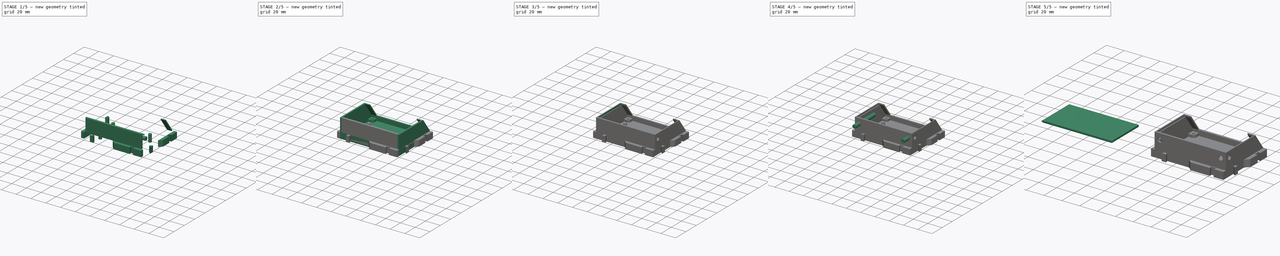
[diagram: build sequence overview — one tinted view per stage of 5, left to right]
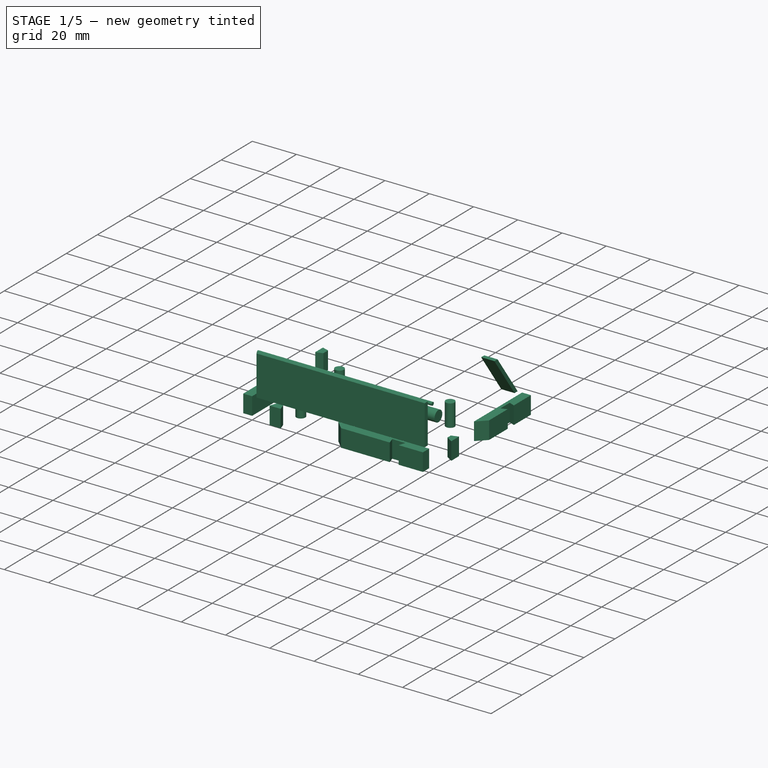
[diagram: stage 1 of 5 — iso view after this stage's code; geometry added in this stage tinted green]
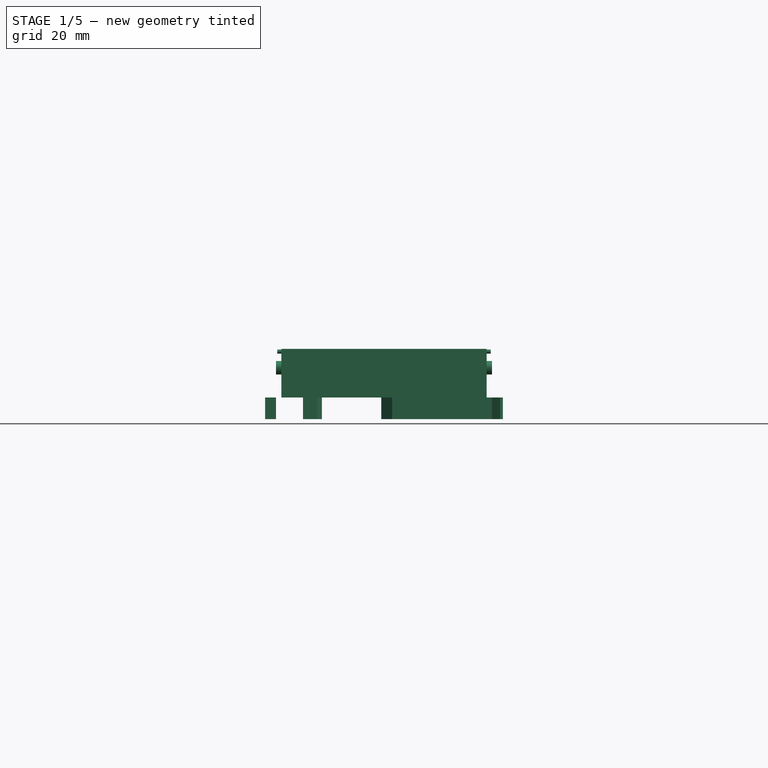
[diagram: stage 1 of 5 — front view after this stage's code; geometry added in this stage tinted green]
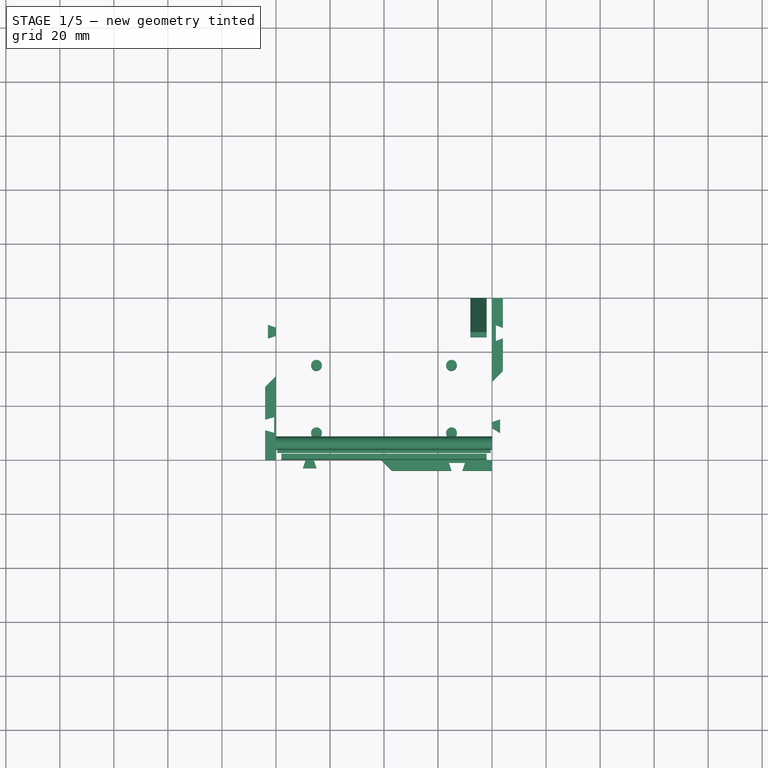
[diagram: stage 1 of 5 — top view after this stage's code; geometry added in this stage tinted green]
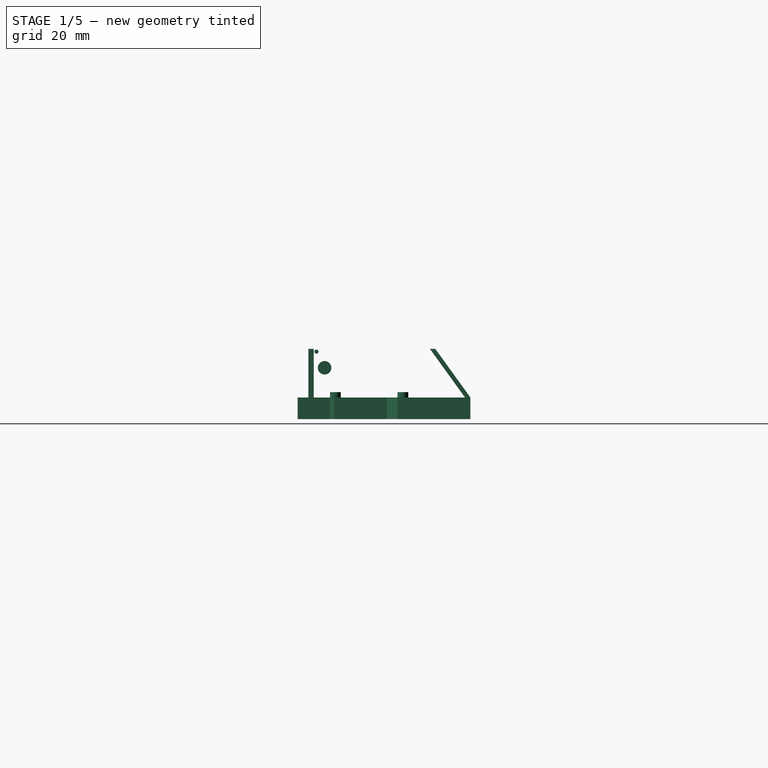
[diagram: stage 1 of 5 — right view after this stage's code; geometry added in this stage tinted green]
FCSTD DOCUMENT  (FreeCAD 0.15R4671 (Git))
Label: SupportV3
License: All rights reserved
LicenseURL: http://en.wikipedia.org/wiki/All_rights_reserved
objects: Sketcher::SketchObject×16, PartDesign::Pad×16, Part::MultiFuse×5, Part::Cut×5, PartDesign::Fillet×2, PartDesign::Chamfer×1
note: 61 computed .brp shape members not serialized (recipe doc carries the construction recipe); baked Part::Feature solids carry a one-line shape summary decoded from their .brp

FEATURE [Sketcher::SketchObject] Sketch007
  Placement = pos=(72,0,0) rot=(0.57735,0.57735,0.57735;2.0944rad)
  sketch-geometry (4):
    g0: LineSegment StartX=0 StartY=8 StartZ=0 EndX=-2 EndY=8 EndZ=0
    g1: LineSegment StartX=-2 StartY=8 StartZ=0 EndX=-15 EndY=26 EndZ=0
    g2: LineSegment StartX=-15 StartY=26 StartZ=0 EndX=-13 EndY=26 EndZ=0
    g3: LineSegment StartX=-13 StartY=26 StartZ=0 EndX=0 EndY=8 EndZ=0
  constraints (12):
    c: PointOnObject(g0,g-2)
    c: Horizontal(g0)
    c: Coincident(g0,g1)
    c: Coincident(g1,g2)
    c: Horizontal(g2)
    c: Coincident(g2,g3)
    c: Coincident(g3,g0)
    c: Parallel(g1,g3)
    c: Distance(g0) = 2
    c: DistanceX(g2,g0) = 13
    c: DistanceY(g1,g0) = -18
    c: DistanceY(g-1,g0) = 8
FEATURE [PartDesign::Pad] Pad007
  Length = 6
  Length2 = 100
  Placement = pos=(72,0,0) rot=(0.57735,0.57735,0.57735;2.0944rad)
  Sketch = -> Sketch007
  Type = 0
FEATURE [Sketcher::SketchObject] Sketch008
  Placement = pos=(2,0,0) rot=(0.57735,0.57735,0.57735;2.0944rad)
  sketch-geometry (4):
    g0: LineSegment StartX=-60 StartY=8 StartZ=0 EndX=-58 EndY=8 EndZ=0
    g1: LineSegment StartX=-58 StartY=8 StartZ=0 EndX=-58 EndY=26 EndZ=0
    g2: LineSegment StartX=-58 StartY=26 StartZ=0 EndX=-60 EndY=26 EndZ=0
    g3: LineSegment StartX=-60 StartY=26 StartZ=0 EndX=-60 EndY=8 EndZ=0
  constraints (12):
    c: Coincident(g0,g1)
    c: Coincident(g1,g2)
    c: Coincident(g2,g3)
    c: Coincident(g3,g0)
    c: Horizontal(g0)
    c: Horizontal(g2)
    c: Vertical(g1)
    c: Vertical(g3)
    c: DistanceY(g-1,g0) = 8
    c: DistanceX(g-1,g0) = -60
    c: DistanceX(g2) = -2
    c: DistanceY(g3) = -18
FEATURE [PartDesign::Pad] Pad008
  Length = 76
  Length2 = 100
  Placement = pos=(2,0,0) rot=(0.57735,0.57735,0.57735;2.0944rad)
  Sketch = -> Sketch008
  Type = 0
FEATURE [Sketcher::SketchObject] Sketch009
  Placement = pos=(0.5,0,0) rot=(0.57735,0.57735,0.57735;2.0944rad)
  sketch-geometry (1):
    g0: Circle CenterX=-57 CenterY=25 CenterZ=0 NormalX=0 NormalY=0 NormalZ=1 Radius=0.75
  constraints (3):
    c: Radius(g0) = 0.75
    c: DistanceX(g-1,g0) = -57
    c: DistanceY(g-1,g0) = 25
FEATURE [PartDesign::Pad] Pad009
  Length = 79
  Length2 = 100
  Placement = pos=(0.5,0,0) rot=(0.57735,0.57735,0.57735;2.0944rad)
  Sketch = -> Sketch009
  Type = 0
FEATURE [Sketcher::SketchObject] Sketch010
  Placement = pos=(0,0,0) rot=(0.57735,0.57735,0.57735;2.0944rad)
  sketch-geometry (1):
    g0: Circle CenterX=-54 CenterY=19 CenterZ=0 NormalX=0 NormalY=0 NormalZ=1 Radius=2.5
  constraints (3):
    c: Radius(g0) = 2.5
    c: DistanceY(g-1,g0) = 19
    c: DistanceX(g-1,g0) = -54
FEATURE [PartDesign::Pad] Pad010
  Length = 80
  Length2 = 100
  Placement = pos=(0,0,0) rot=(0.57735,0.57735,0.57735;2.0944rad)
  Sketch = -> Sketch010
  Type = 0
FEATURE [Sketcher::SketchObject] Sketch011
  sketch-geometry (36):
    g0: LineSegment StartX=0 StartY=-11 StartZ=0 EndX=-3 EndY=-10 EndZ=0
    g1: LineSegment StartX=-3 StartY=-10 StartZ=0 EndX=-3 EndY=-15 EndZ=0
    g2: LineSegment StartX=-3 StartY=-15 StartZ=0 EndX=0 EndY=-14 EndZ=0
    g3: LineSegment StartX=0 StartY=-14 StartZ=0 EndX=0 EndY=-11 EndZ=0
    g4: LineSegment StartX=0 StartY=-29 StartZ=0 EndX=-4 EndY=-33 EndZ=0
    g5: LineSegment StartX=-4 StartY=-33 StartZ=0 EndX=-4 EndY=-45 EndZ=0
    g6: LineSegment StartX=-4 StartY=-45 StartZ=0 EndX=-0.682166 EndY=-44 EndZ=0
    g7: LineSegment StartX=-0.682166 StartY=-44 StartZ=0 EndX=-0.682166 EndY=-50 EndZ=0
    g8: LineSegment StartX=-0.682166 StartY=-50 StartZ=0 EndX=-4 EndY=-49 EndZ=0
    g9: LineSegment StartX=-4 StartY=-49 StartZ=0 EndX=-4 EndY=-60 EndZ=0
    g10: LineSegment StartX=-4 StartY=-60 StartZ=0 EndX=0 EndY=-60 EndZ=0
    g11: LineSegment StartX=0 StartY=-60 StartZ=0 EndX=0 EndY=-29 EndZ=0
    g12: LineSegment StartX=11 StartY=-60 StartZ=0 EndX=10 EndY=-63 EndZ=0
    g13: LineSegment StartX=10 StartY=-63 StartZ=0 EndX=15 EndY=-63 EndZ=0
    g14: LineSegment StartX=15 StartY=-63 StartZ=0 EndX=14 EndY=-60 EndZ=0
    g15: LineSegment StartX=14 StartY=-60 StartZ=0 EndX=11 EndY=-60 EndZ=0
    g16: LineSegment StartX=39 StartY=-60 StartZ=0 EndX=43 EndY=-64 EndZ=0
    g17: LineSegment StartX=43 StartY=-64 StartZ=0 EndX=65 EndY=-64 EndZ=0
    g18: LineSegment StartX=65 StartY=-64 StartZ=0 EndX=64 EndY=-61 EndZ=0
    g19: LineSegment StartX=64 StartY=-61 StartZ=0 EndX=70 EndY=-61 EndZ=0
    g20: LineSegment StartX=70 StartY=-61 StartZ=0 EndX=69 EndY=-64 EndZ=0
    g21: LineSegment StartX=69 StartY=-64 StartZ=0 EndX=80 EndY=-64 EndZ=0
    g22: LineSegment StartX=80 StartY=-64 StartZ=0 EndX=80 EndY=-60 EndZ=0
    g23: LineSegment StartX=80 StartY=-60 StartZ=0 EndX=39 EndY=-60 EndZ=0
    g24: LineSegment StartX=80 StartY=0 StartZ=0 EndX=80 EndY=-31 EndZ=0
    g25: LineSegment StartX=80 StartY=-31 StartZ=0 EndX=84 EndY=-27 EndZ=0
    g26: LineSegment StartX=84 StartY=-27 StartZ=0 EndX=84 EndY=-15 EndZ=0
    g27: LineSegment StartX=84 StartY=-15 StartZ=0 EndX=81.4176 EndY=-16 EndZ=0
    g28: LineSegment StartX=81.4176 StartY=-16 StartZ=0 EndX=81.4176 EndY=-10 EndZ=0
    g29: LineSegment StartX=81.4176 StartY=-10 StartZ=0 EndX=84 EndY=-11 EndZ=0
    g30: LineSegment StartX=84 StartY=-11 StartZ=0 EndX=84 EndY=0 EndZ=0
    g31: LineSegment StartX=84 StartY=0 StartZ=0 EndX=80 EndY=0 EndZ=0
    g32: LineSegment StartX=80 StartY=-46 StartZ=0 EndX=83 EndY=-45 EndZ=0
    g33: LineSegment StartX=83 StartY=-45 StartZ=0 EndX=83 EndY=-50 EndZ=0
    g34: LineSegment StartX=83 StartY=-50 StartZ=0 EndX=80 EndY=-48.1292 EndZ=0
    g35: LineSegment StartX=80 StartY=-48.1292 StartZ=0 EndX=80 EndY=-46 EndZ=0
  constraints (105):
    c: PointOnObject(g0,g-2)
    c: Coincident(g0,g1)
    c: Vertical(g1)
    c: Coincident(g1,g2)
    c: PointOnObject(g2,g-2)
    c: Coincident(g2,g3)
    c: Coincident(g3,g0)
    c: DistanceY(g0,g0) = -1
    c: DistanceY(g3) = 3
    c: DistanceY(g1) = -5
    c: DistanceX(g0,g0) = -3
    c: DistanceY(g-1,g0) = -10
    c: PointOnObject(g4,g-2)
    c: Coincident(g4,g5)
    c: Vertical(g5)
    c: Coincident(g5,g6)
    c: Coincident(g6,g7)
    c: Vertical(g7)
    c: Coincident(g7,g8)
    c: Coincident(g8,g9)
    c: Vertical(g9)
    c: Coincident(g9,g10)
    c: Horizontal(g10)
    c: Coincident(g10,g11)
    c: Coincident(g11,g4)
    c: Vertical(g11)
    c: DistanceX(g4,g4) = 4
    c: DistanceY(g4,g4) = -4
    c: DistanceY(g6,g5) = -1
    c: DistanceY(g7,g8) = 1
    c: DistanceY(g7) = -6
    c: DistanceY(g7,g9) = -10
    c: DistanceY(g-1,g10) = -60
    c: DistanceY(g-1,g4) = -29
    c: Coincident(g12,g13)
    c: Horizontal(g13)
    c: Coincident(g13,g14)
    c: Coincident(g14,g15)
    c: Coincident(g15,g12)
    c: Horizontal(g15)
    c: DistanceY(g12,g10) = 0
    c: DistanceY(g12,g12) = -3
    c: DistanceX(g12,g12) = 1
    c: DistanceX(g15) = -3
    c: DistanceX(g13) = 5
    c: DistanceX(g12,g10) = -10
    c: Coincident(g16,g17)
    c: Horizontal(g17)
    c: Coincident(g17,g18)
    c: Coincident(g18,g19)
    c: Horizontal(g19)
    c: Coincident(g19,g20)
    c: Coincident(g20,g21)
    c: Horizontal(g21)
    c: Coincident(g21,g22)
    c: Coincident(g22,g23)
    c: Coincident(g23,g16)
    c: Horizontal(g23)
    c: DistanceX(g10) = 4
    c: DistanceY(g22) = 4
    c: DistanceY(g14,g16) = 0
    c: DistanceY(g16,g16) = 4
    c: DistanceX(g16,g16) = 4
    c: DistanceX(g10,g22) = 80
    c: DistanceX(g19,g22) = 10
    c: DistanceX(g19) = 6
    c: DistanceX(g17,g18) = -1
    c: DistanceX(g20,g19) = 1
    c: DistanceY(g20,g19) = 3
    c: Vertical(g22)
    c: DistanceX(g16,g10) = -39
    c: PointOnObject(g24,g-1)
    c: Vertical(g24)
    c: Coincident(g24,g25)
    c: Coincident(g25,g26)
    c: Vertical(g26)
    c: Coincident(g26,g27)
    c: Coincident(g27,g28)
    c: Vertical(g28)
    c: Coincident(g28,g29)
    c: Coincident(g29,g30)
    c: PointOnObject(g30,g-1)
    c: Vertical(g30)
    c: Coincident(g30,g31)
    c: Coincident(g31,g24)
    c: DistanceY(g24) = -31
    c: DistanceX(g31) = -4
    c: DistanceX(g-1,g24) = 80
    c: DistanceY(g25,g24) = -4
    c: DistanceX(g25,g24) = -4
    c: DistanceY(g27,g26) = 1
    c: DistanceY(g28,g29) = -1
    c: DistanceY(g28) = 6
    c: DistanceY(g28,g30) = 10
    c: Coincident(g32,g33)
    c: Vertical(g33)
    c: Coincident(g33,g34)
    c: Coincident(g34,g35)
    c: Coincident(g35,g32)
    c: Vertical(g35)
    c: DistanceX(g32,g24) = 0
    c: DistanceX(g32) = 3
    c: DistanceY(g32,g32) = -1
    c: DistanceY(g33) = -5
    c: DistanceY(g33,g30) = 50
FEATURE [PartDesign::Pad] Pad011
  Length = 8
  Length2 = 100
  Sketch = -> Sketch011
  Type = 0
FEATURE [Sketcher::SketchObject] Sketch015
  sketch-geometry (4):
    g0: Circle CenterX=15 CenterY=-25 CenterZ=0 NormalX=0 NormalY=0 NormalZ=1 Radius=2
    g1: Circle CenterX=65 CenterY=-25 CenterZ=0 NormalX=0 NormalY=0 NormalZ=1 Radius=2
    g2: Circle CenterX=15 CenterY=-50 CenterZ=0 NormalX=0 NormalY=0 NormalZ=1 Radius=2
    g3: Circle CenterX=65 CenterY=-50 CenterZ=0 NormalX=0 NormalY=0 NormalZ=1 Radius=2
  constraints (12):
    c: Radius(g0) = 2
    c: Radius(g1) = 2
    c: DistanceY(g-1,g0) = -25
    c: DistanceY(g-1,g1) = -25
    c: DistanceX(g-2,g0) = 15
    c: Distance(g1,g0) = 50
    c: Radius(g3) = 2
    c: Radius(g2) = 2
    c: DistanceX(g-2,g2) = 15
    c: Distance(g2,g3) = 50
    c: Distance(g3,g1) = 25
    c: Distance(g2,g0) = 25
FEATURE [PartDesign::Pad] Pad015  label="Parafusos"
  Length = 10
  Length2 = 100
  Sketch = -> Sketch015
  Type = 0
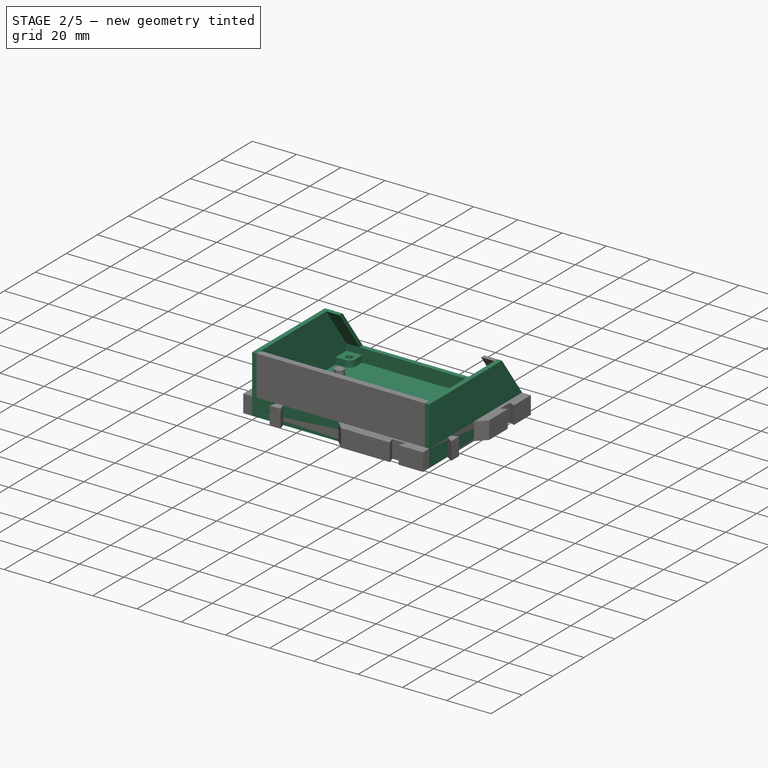
[diagram: stage 2 of 5 — iso view after this stage's code; geometry added in this stage tinted green]
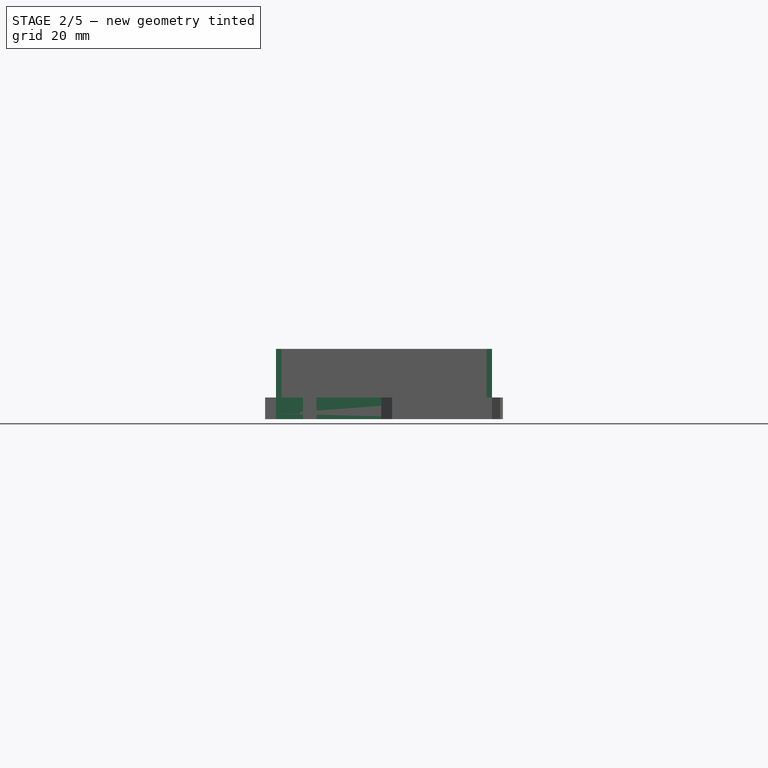
[diagram: stage 2 of 5 — front view after this stage's code; geometry added in this stage tinted green]
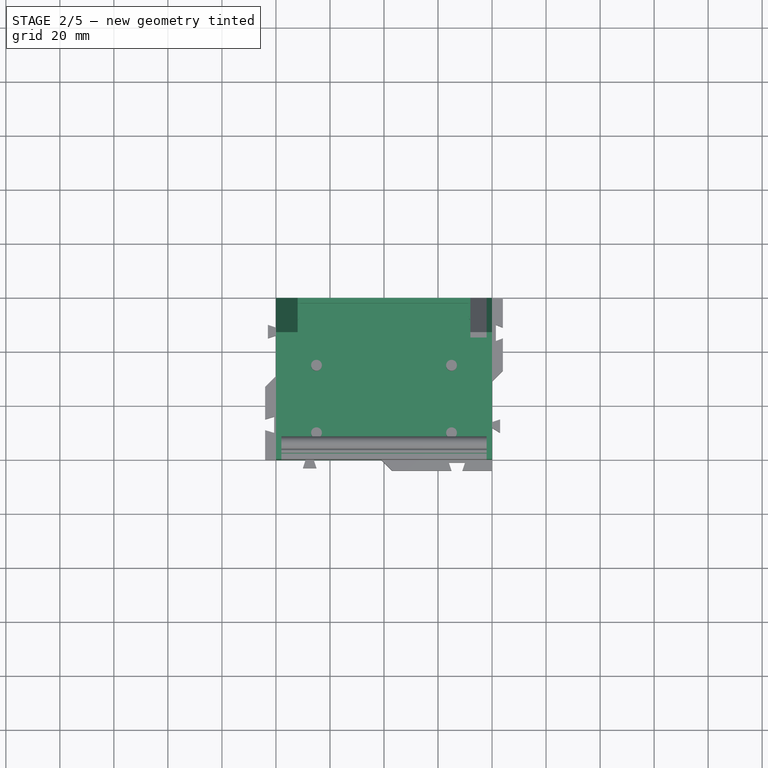
[diagram: stage 2 of 5 — top view after this stage's code; geometry added in this stage tinted green]
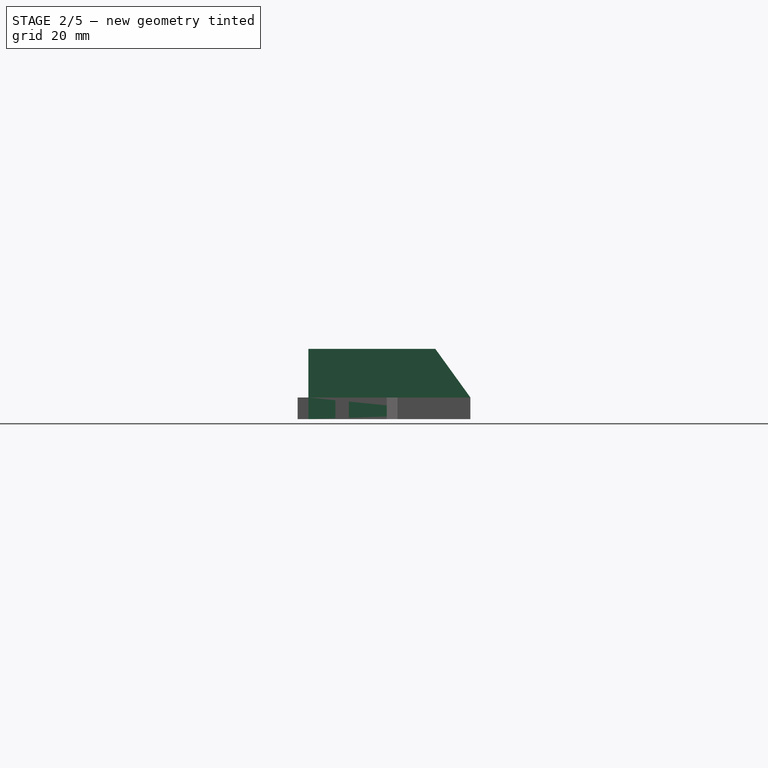
[diagram: stage 2 of 5 — right view after this stage's code; geometry added in this stage tinted green]
FEATURE [Sketcher::SketchObject] Sketch
  sketch-geometry (4):
    g0: LineSegment StartX=0 StartY=0 StartZ=0 EndX=80 EndY=0 EndZ=0
    g1: LineSegment StartX=80 StartY=0 StartZ=0 EndX=80 EndY=-60 EndZ=0
    g2: LineSegment StartX=80 StartY=-60 StartZ=0 EndX=0 EndY=-60 EndZ=0
    g3: LineSegment StartX=0 StartY=-60 StartZ=0 EndX=0 EndY=0 EndZ=0
  constraints (11):
    c: Coincident(g0,g1)
    c: Coincident(g1,g2)
    c: Coincident(g2,g3)
    c: Coincident(g3,g0)
    c: Horizontal(g0)
    c: Horizontal(g2)
    c: Vertical(g1)
    c: Vertical(g3)
    c: Coincident(g0,g-1)
    c: DistanceX(g0) = 80
    c: DistanceY(g3) = 60
FEATURE [PartDesign::Pad] Pad  label="Base"
  Length = 2
  Length2 = 100
  Sketch = -> Sketch
  Type = 0
FEATURE [Sketcher::SketchObject] Sketch001
  Placement = pos=(0,0,2) rot=(0,0,1;0rad)
  sketch-geometry (8):
    g0: LineSegment StartX=0 StartY=0 StartZ=0 EndX=80 EndY=0 EndZ=0
    g1: LineSegment StartX=80 StartY=0 StartZ=0 EndX=80 EndY=-60 EndZ=0
    g2: LineSegment StartX=80 StartY=-60 StartZ=0 EndX=0 EndY=-60 EndZ=0
    g3: LineSegment StartX=0 StartY=-60 StartZ=0 EndX=0 EndY=0 EndZ=0
    g4: LineSegment StartX=2 StartY=-2 StartZ=0 EndX=78 EndY=-2 EndZ=0
    g5: LineSegment StartX=78 StartY=-2 StartZ=0 EndX=78 EndY=-58 EndZ=0
    g6: LineSegment StartX=78 StartY=-58 StartZ=0 EndX=2 EndY=-58 EndZ=0
    g7: LineSegment StartX=2 StartY=-58 StartZ=0 EndX=2 EndY=-2 EndZ=0
  constraints (23):
    c: Coincident(g0,g1)
    c: Coincident(g1,g2)
    c: Coincident(g2,g3)
    c: Coincident(g3,g0)
    c: Horizontal(g0)
    c: Horizontal(g2)
    c: Vertical(g1)
    c: Vertical(g3)
    c: Coincident(g0,g-1)
    c: DistanceX(g0) = 80
    c: DistanceY(g3) = 60
    c: Coincident(g4,g5)
    c: Coincident(g5,g6)
    c: Coincident(g6,g7)
    c: Coincident(g7,g4)
    c: Horizontal(g4)
    c: Horizontal(g6)
    c: Vertical(g5)
    c: Vertical(g7)
    c: DistanceY(g-1,g4) = -2
    c: DistanceX(g6,g2) = -2
    c: DistanceY(g5,g1) = -2
    c: DistanceX(g0,g4) = -2
FEATURE [PartDesign::Pad] Pad001
  Length = 6
  Length2 = 100
  Placement = pos=(0,0,2) rot=(0,0,1;0rad)
  Sketch = -> Sketch001
  Type = 0
FEATURE [Sketcher::SketchObject] Sketch002
  Placement = pos=(0,0,2) rot=(0,0,1;0rad)
  sketch-geometry (24):
    g0: Circle CenterX=6 CenterY=-6 CenterZ=0 NormalX=0 NormalY=0 NormalZ=1 Radius=1.5
    g1: LineSegment StartX=9 StartY=0 StartZ=0 EndX=9 EndY=-6 EndZ=0
    g2: ArcOfCircle CenterX=6 CenterY=-6 CenterZ=0 NormalX=0 NormalY=0 NormalZ=1 Radius=3 StartAngle=4.71239 EndAngle=6.28319
    g3: LineSegment StartX=0 StartY=0 StartZ=0 EndX=9 EndY=0 EndZ=0
    g4: LineSegment StartX=0 StartY=0 StartZ=0 EndX=0 EndY=-9 EndZ=0
    g5: LineSegment StartX=0 StartY=-9 StartZ=0 EndX=6 EndY=-9 EndZ=0
    g6: LineSegment StartX=71 StartY=0 StartZ=0 EndX=80 EndY=0 EndZ=0
    g7: LineSegment StartX=71 StartY=0 StartZ=0 EndX=71 EndY=-6 EndZ=0
    g8: LineSegment StartX=80 StartY=0 StartZ=0 EndX=80 EndY=-9 EndZ=0
    g9: LineSegment StartX=80 StartY=-9 StartZ=0 EndX=74 EndY=-9 EndZ=0
    g10: Circle CenterX=74 CenterY=-6 CenterZ=0 NormalX=0 NormalY=0 NormalZ=1 Radius=1.5
    g11: ArcOfCircle CenterX=74 CenterY=-6 CenterZ=0 NormalX=0 NormalY=0 NormalZ=1 Radius=3 StartAngle=3.14159 EndAngle=4.71239
    g12: LineSegment StartX=6 StartY=-51 StartZ=0 EndX=0 EndY=-51 EndZ=0
    g13: LineSegment StartX=0 StartY=-51 StartZ=0 EndX=0 EndY=-60 EndZ=0
    g14: LineSegment StartX=0 StartY=-60 StartZ=0 EndX=9 EndY=-60 EndZ=0
    g15: LineSegment StartX=9 StartY=-60 StartZ=0 EndX=9 EndY=-54 EndZ=0
    g16: Circle CenterX=6 CenterY=-54 CenterZ=0 NormalX=0 NormalY=0 NormalZ=1 Radius=1.5
    g17: ArcOfCircle CenterX=6 CenterY=-54 CenterZ=0 NormalX=0 NormalY=0 NormalZ=1 Radius=3 StartAngle=0 EndAngle=1.5708
    g18: LineSegment StartX=71 StartY=-54 StartZ=0 EndX=71 EndY=-60 EndZ=0
    g19: LineSegment StartX=71 StartY=-60 StartZ=0 EndX=80 EndY=-60 EndZ=0
    g20: LineSegment StartX=80 StartY=-60 StartZ=0 EndX=80 EndY=-51 EndZ=0
    g21: LineSegment StartX=80 StartY=-51 StartZ=0 EndX=74 EndY=-51 EndZ=0
    g22: Circle CenterX=74 CenterY=-54 CenterZ=0 NormalX=0 NormalY=0 NormalZ=1 Radius=1.5
    g23: ArcOfCircle CenterX=74 CenterY=-54 CenterZ=0 NormalX=0 NormalY=0 NormalZ=1 Radius=3 StartAngle=1.5708 EndAngle=3.14159
  constraints (73):
    c: Radius(g0) = 1.5
    c: Coincident(g2,g1)
    c: DistanceY(g1) = -6
    c: Vertical(g1)
    c: Coincident(g3,g-1)
    c: Coincident(g3,g1)
    c: Horizontal(g3)
    c: DistanceX(g3) = 9
    c: Coincident(g4,g-1)
    c: PointOnObject(g4,g-2)
    c: Coincident(g5,g4)
    c: Coincident(g5,g2)
    c: Horizontal(g5)
    c: DistanceX(g5) = 6
    c: DistanceX(g-1,g0) = 6
    c: DistanceY(g-1,g2) = -6
    c: Horizontal(g6)
    c: Coincident(g6,g7)
    c: Vertical(g7)
    c: Coincident(g6,g8)
    c: Vertical(g8)
    c: Coincident(g8,g9)
    c: Horizontal(g9)
    c: DistanceY(g8) = -9
    c: PointOnObject(g6,g-1)
    c: DistanceX(g6) = 9
    c: DistanceX(g9) = -6
    c: DistanceY(g7) = -6
    c: DistanceX(g-1,g6) = 80
    c: DistanceX(g10,g6) = 6
    c: DistanceY(g10,g6) = 6
    c: Radius(g10) = 1.5
    c: Coincident(g11,g10)
    c: Coincident(g11,g9)
    c: Coincident(g11,g7)
    c: Horizontal(g12)
    c: Coincident(g12,g13)
    c: PointOnObject(g13,g-2)
    c: Vertical(g13)
    c: Coincident(g13,g14)
    c: Horizontal(g14)
    c: Coincident(g14,g15)
    c: Vertical(g15)
    c: DistanceX(g12) = -6
    c: DistanceY(g15) = 6
    c: DistanceX(g14) = 9
    c: DistanceY(g13) = -9
    c: DistanceY(g-1,g13) = -60
    c: DistanceX(g16,g13) = -6
    c: DistanceY(g16,g13) = -6
    c: Radius(g16) = 1.5
    c: Coincident(g17,g16)
    c: Coincident(g17,g15)
    c: Coincident(g17,g12)
    c: Vertical(g18)
    c: Coincident(g18,g19)
    c: Horizontal(g19)
    c: Coincident(g19,g20)
    c: Vertical(g20)
    c: Coincident(g20,g21)
    c: Horizontal(g21)
    c: DistanceY(g20) = 9
    c: DistanceX(g19) = 9
    c: DistanceY(g18) = -6
    c: DistanceX(g21) = -6
    c: DistanceX(g19,g13) = -80
    c: DistanceY(g19,g6) = 60
    c: DistanceX(g22,g19) = 6
    c: DistanceY(g22,g19) = -6
    c: Radius(g22) = 1.5
    c: Coincident(g23,g22)
    c: Coincident(g23,g18)
    c: Coincident(g23,g21)
FEATURE [PartDesign::Pad] Pad002
  Length = 3
  Length2 = 100
  Placement = pos=(0,0,2) rot=(0,0,1;0rad)
  Sketch = -> Sketch002
  Type = 0
FEATURE [Sketcher::SketchObject] Sketch003
  Placement = pos=(0,0,0) rot=(0.57735,0.57735,0.57735;2.0944rad)
  sketch-geometry (4):
    g0: LineSegment StartX=0 StartY=8 StartZ=0 EndX=-60 EndY=8 EndZ=0
    g1: LineSegment StartX=-60 StartY=8 StartZ=0 EndX=-60 EndY=26 EndZ=0
    g2: LineSegment StartX=-60 StartY=26 StartZ=0 EndX=-13 EndY=26 EndZ=0
    g3: LineSegment StartX=-13 StartY=26 StartZ=0 EndX=0 EndY=8 EndZ=0
  constraints (12):
    c: PointOnObject(g0,g-2)
    c: Horizontal(g0)
    c: Coincident(g0,g1)
    c: Vertical(g1)
    c: Coincident(g1,g2)
    c: Horizontal(g2)
    c: Coincident(g2,g3)
    c: Coincident(g3,g0)
    c: DistanceX(g2,g0) = 13
    c: DistanceY(g1) = 18
    c: DistanceY(g-1,g0) = 8
    c: DistanceX(g0) = -60
FEATURE [PartDesign::Pad] Pad003
  Length = 2
  Length2 = 100
  Placement = pos=(0,0,0) rot=(0.57735,0.57735,0.57735;2.0944rad)
  Sketch = -> Sketch003
  Type = 0
FEATURE [Sketcher::SketchObject] Sketch005
  Placement = pos=(78,0,0) rot=(0.57735,0.57735,0.57735;2.0944rad)
  sketch-geometry (4):
    g0: LineSegment StartX=0 StartY=8 StartZ=0 EndX=-60 EndY=8 EndZ=0
    g1: LineSegment StartX=-60 StartY=8 StartZ=0 EndX=-60 EndY=26 EndZ=0
    g2: LineSegment StartX=-60 StartY=26 StartZ=0 EndX=-13 EndY=26 EndZ=0
    g3: LineSegment StartX=-13 StartY=26 StartZ=0 EndX=0 EndY=8 EndZ=0
  constraints (12):
    c: PointOnObject(g0,g-2)
    c: Horizontal(g0)
    c: Coincident(g0,g1)
    c: Vertical(g1)
    c: Coincident(g1,g2)
    c: Horizontal(g2)
    c: Coincident(g2,g3)
    c: Coincident(g3,g0)
    c: DistanceY(g1) = 18
    c: DistanceX(g0) = -60
    c: DistanceY(g-1,g0) = 8
    c: DistanceX(g2,g0) = 13
FEATURE [PartDesign::Pad] Pad005
  Length = 2
  Length2 = 100
  Placement = pos=(78,0,0) rot=(0.57735,0.57735,0.57735;2.0944rad)
  Sketch = -> Sketch005
  Type = 0
FEATURE [Sketcher::SketchObject] Sketch006
  Placement = pos=(2,0,0) rot=(0.57735,0.57735,0.57735;2.0944rad)
  sketch-geometry (4):
    g0: LineSegment StartX=0 StartY=8 StartZ=0 EndX=-2 EndY=8 EndZ=0
    g1: LineSegment StartX=-2 StartY=8 StartZ=0 EndX=-15 EndY=26 EndZ=0
    g2: LineSegment StartX=-15 StartY=26 StartZ=0 EndX=-13 EndY=26 EndZ=0
    g3: LineSegment StartX=-13 StartY=26 StartZ=0 EndX=0 EndY=8 EndZ=0
  constraints (12):
    c: PointOnObject(g0,g-2)
    c: Horizontal(g0)
    c: Coincident(g0,g1)
    c: Coincident(g1,g2)
    c: Horizontal(g2)
    c: Coincident(g2,g3)
    c: Coincident(g3,g0)
    c: Parallel(g3,g1)
    c: Distance(g0) = 2
    c: DistanceX(g2,g0) = 13
    c: DistanceY(g-1,g0) = 8
    c: DistanceY(g1,g0) = -18
FEATURE [PartDesign::Pad] Pad006
  Length = 6
  Length2 = 100
  Placement = pos=(2,0,0) rot=(0.57735,0.57735,0.57735;2.0944rad)
  Sketch = -> Sketch006
  Type = 0
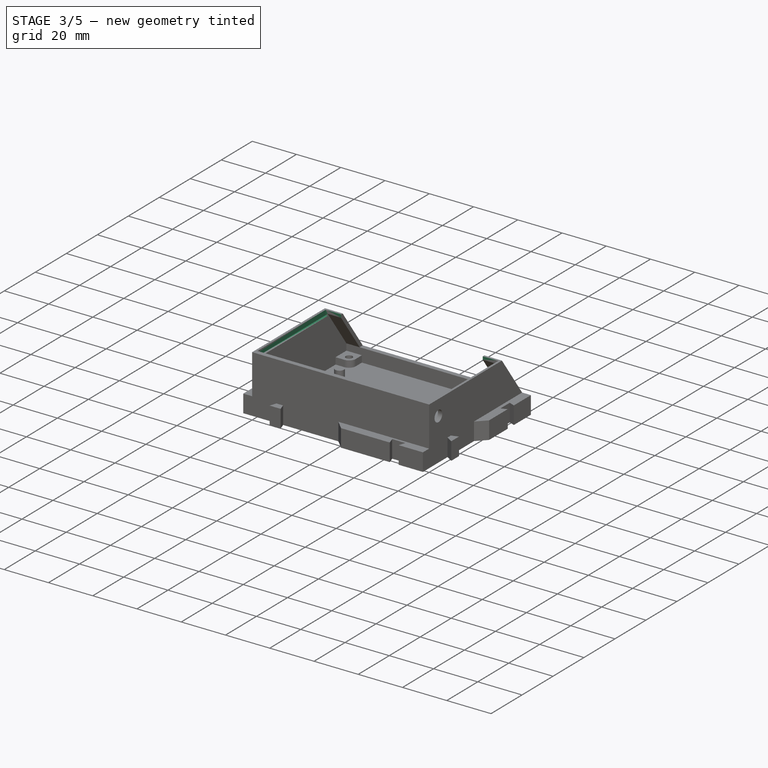
[diagram: stage 3 of 5 — iso view after this stage's code; geometry added in this stage tinted green]
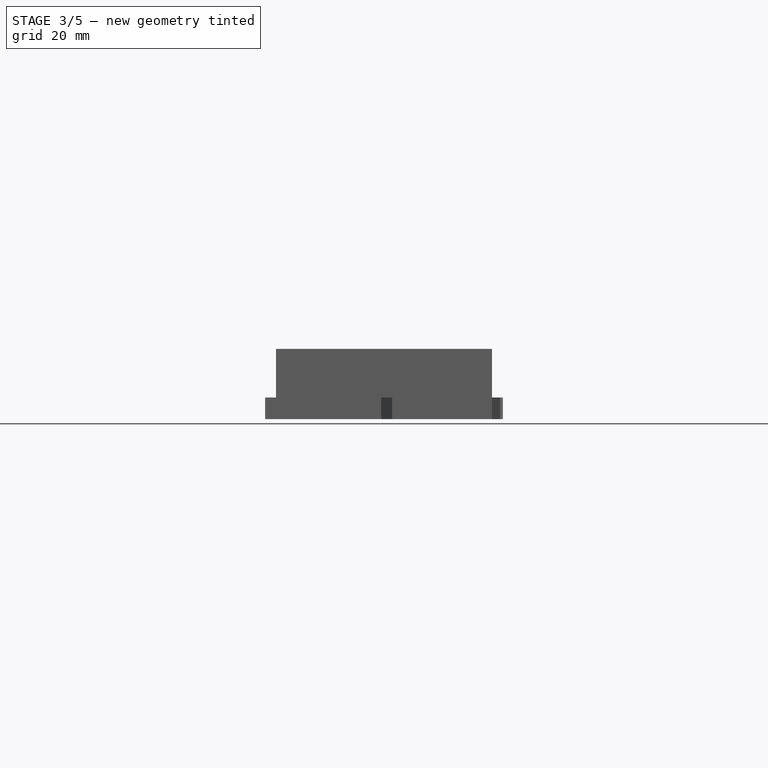
[diagram: stage 3 of 5 — front view after this stage's code; geometry added in this stage tinted green]
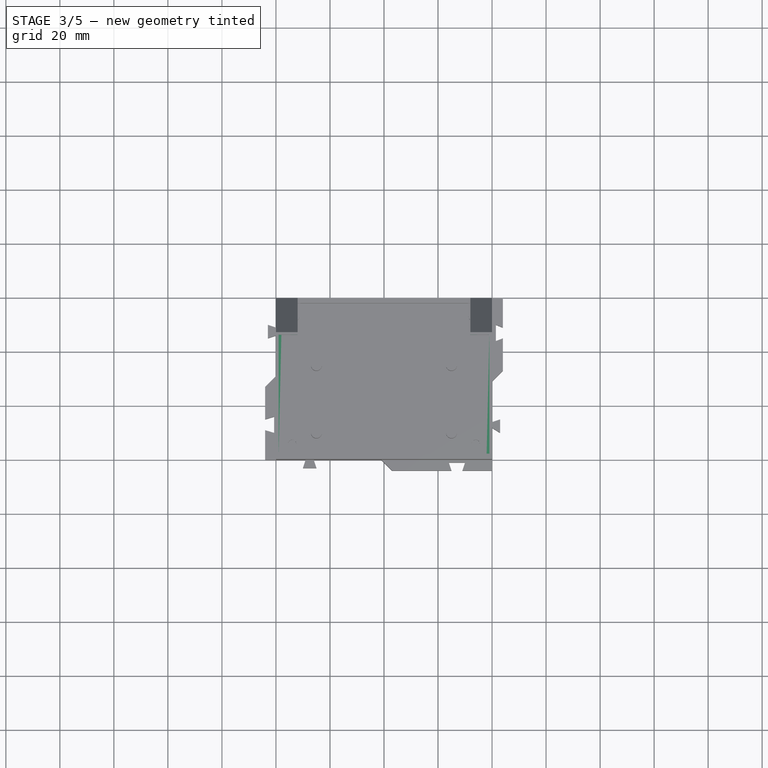
[diagram: stage 3 of 5 — top view after this stage's code; geometry added in this stage tinted green]
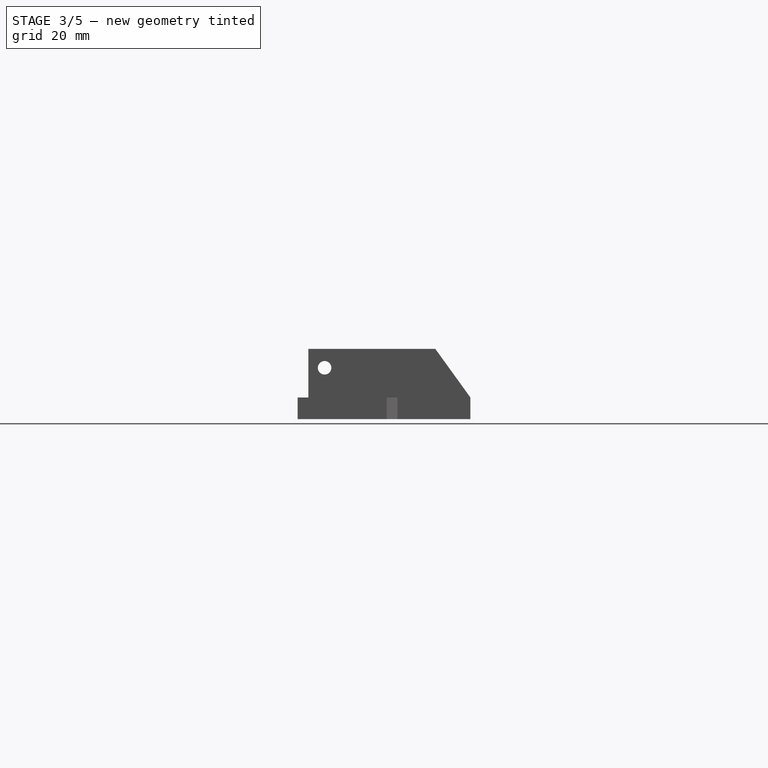
[diagram: stage 3 of 5 — right view after this stage's code; geometry added in this stage tinted green]
FEATURE [Sketcher::SketchObject] Sketch004
  Placement = pos=(1,0,0) rot=(0.57735,0.57735,0.57735;2.0944rad)
  sketch-geometry (4):
    g0: LineSegment StartX=-58 StartY=26 StartZ=0 EndX=-14 EndY=26 EndZ=0
    g1: LineSegment StartX=-14 StartY=26 StartZ=0 EndX=-14 EndY=23.8 EndZ=0
    g2: LineSegment StartX=-14 StartY=23.8 StartZ=0 EndX=-58 EndY=23.8 EndZ=0
    g3: LineSegment StartX=-58 StartY=23.8 StartZ=0 EndX=-58 EndY=26 EndZ=0
  constraints (12):
    c: Coincident(g0,g1)
    c: Coincident(g1,g2)
    c: Coincident(g2,g3)
    c: Coincident(g3,g0)
    c: Horizontal(g0)
    c: Horizontal(g2)
    c: Vertical(g1)
    c: Vertical(g3)
    c: DistanceX(g-1,g0) = -58
    c: DistanceY(g1) = -2.2
    c: Distance(g2) = 44
    c: DistanceY(g-1,g0) = 26
FEATURE [PartDesign::Pad] Pad004  label="Corte da tampa"
  Length = 78
  Length2 = 100
  Placement = pos=(1,0,0) rot=(0.57735,0.57735,0.57735;2.0944rad)
  Sketch = -> Sketch004
  Type = 0
FEATURE [Part::MultiFuse] Fusion
  Shapes = -> [Pad003,Pad002,Pad001,Pad,Pad005,Pad007,Pad008,Pad006]
FEATURE [Part::Cut] Cut
  Base = -> Fusion
  Tool = -> Pad004
FEATURE [Part::Cut] Cut001
  Base = -> Cut
  Tool = -> Pad009
FEATURE [Part::Cut] Cut002
  Base = -> Cut001
  Tool = -> Pad010
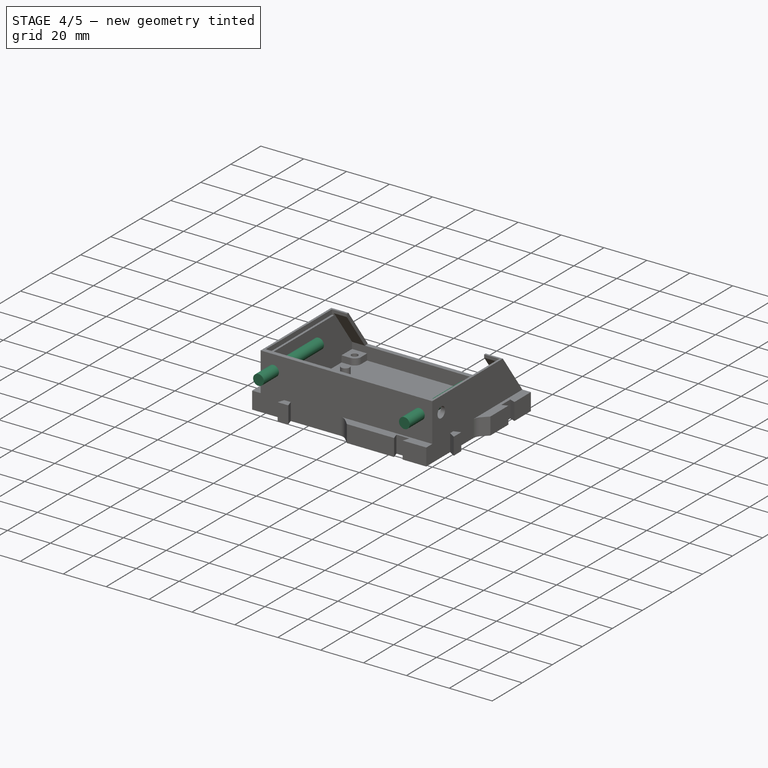
[diagram: stage 4 of 5 — iso view after this stage's code; geometry added in this stage tinted green]
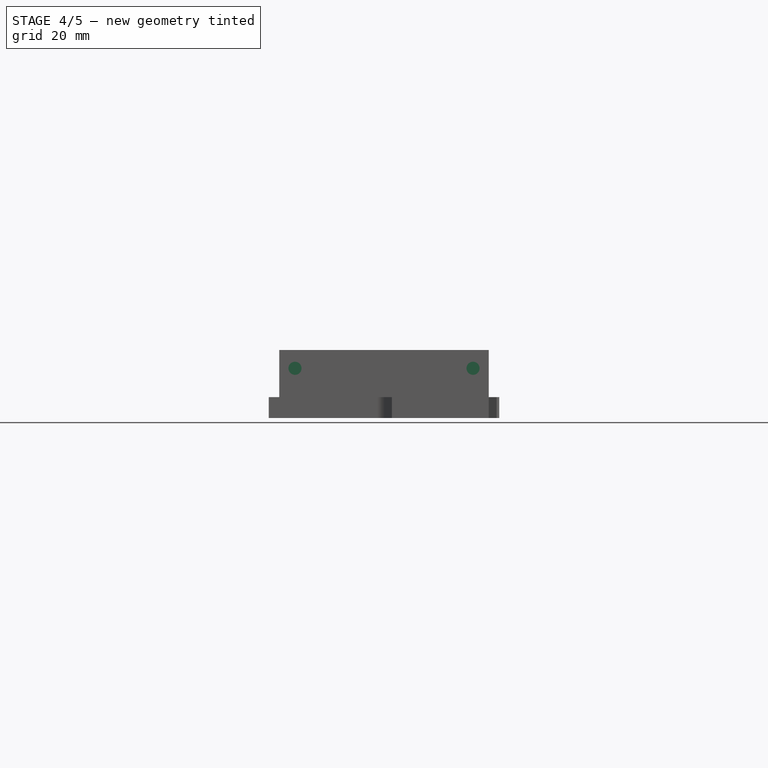
[diagram: stage 4 of 5 — front view after this stage's code; geometry added in this stage tinted green]
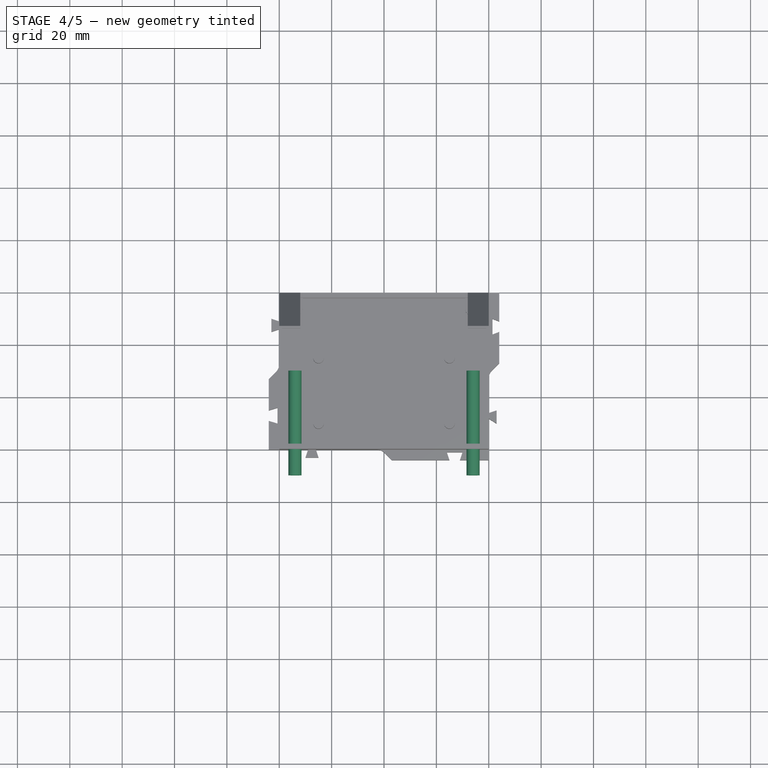
[diagram: stage 4 of 5 — top view after this stage's code; geometry added in this stage tinted green]
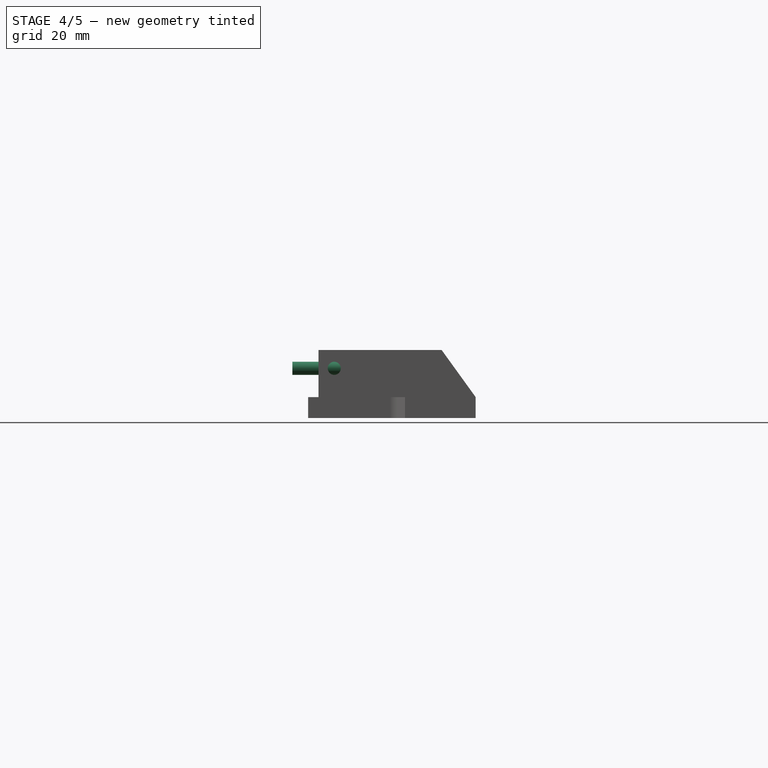
[diagram: stage 4 of 5 — right view after this stage's code; geometry added in this stage tinted green]
FEATURE [PartDesign::Fillet] Fillet
  Base = -> Pad011 [Edge74,Edge77,Edge53,Edge62,Edge98,Edge101,Edge5,Edge14,Edge89,Edge86,Edge32,Edge41]
  Radius = 0.5
FEATURE [Part::MultiFuse] Fusion001
  Shapes = -> [Pad011,Cut002]
FEATURE [Part::MultiFuse] Fusion002
  Shapes = -> [Fusion001,Fillet]
FEATURE [PartDesign::Fillet] Fillet001
  Base = -> Fusion002 [Edge189,Edge188,Edge76,Edge245,Edge244,Edge118,Edge208,Edge184,Edge79]
  Radius = 4
FEATURE [Sketcher::SketchObject] Sketch012
  Placement = pos=(0,-30,0) rot=(1,0,0;1.5708rad)
  sketch-geometry (2):
    g0: Circle CenterX=6 CenterY=19 CenterZ=0 NormalX=0 NormalY=0 NormalZ=1 Radius=2.5
    g1: Circle CenterX=74 CenterY=19 CenterZ=0 NormalX=0 NormalY=0 NormalZ=1 Radius=2.5
  constraints (6):
    c: Radius(g0) = 2.5
    c: Radius(g1) = 2.5
    c: DistanceX(g-1,g0) = 6
    c: DistanceY(g-1,g0) = 19
    c: DistanceY(g-1,g1) = 19
    c: DistanceX(g-1,g1) = 74
FEATURE [PartDesign::Pad] Pad012
  Length = 40
  Length2 = 100
  Placement = pos=(0,-30,0) rot=(1,0,0;1.5708rad)
  Sketch = -> Sketch012
  Type = 0
FEATURE [Part::MultiFuse] Fusion003
  Shapes = -> [Fusion002,Fillet001]
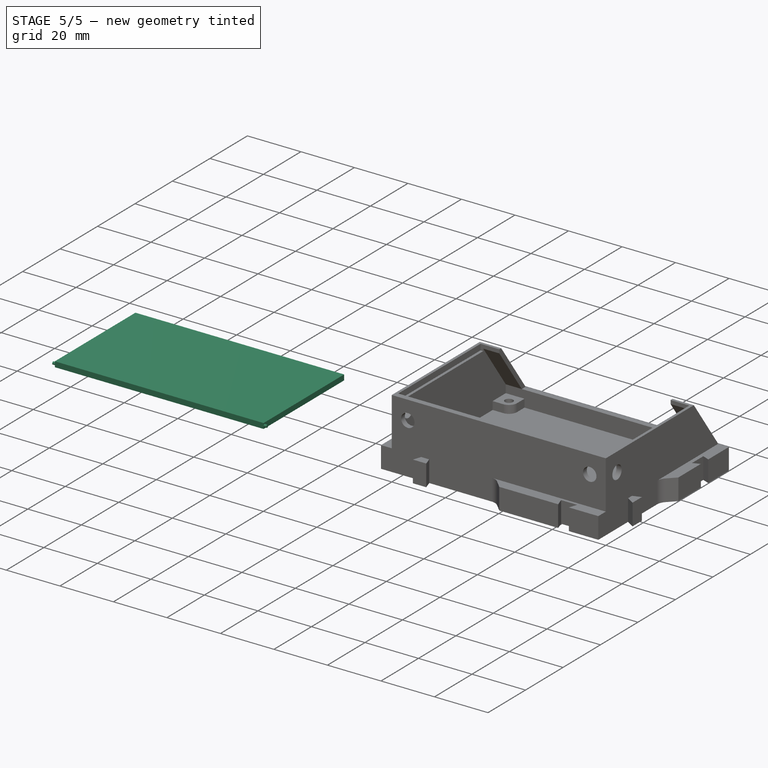
[diagram: stage 5 of 5 — iso view after this stage's code; geometry added in this stage tinted green]
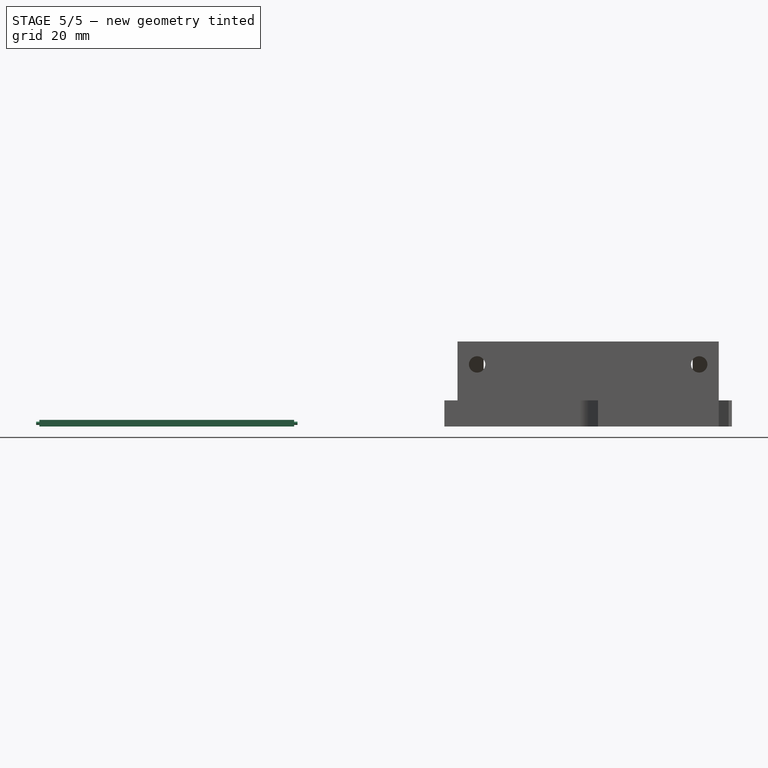
[diagram: stage 5 of 5 — front view after this stage's code; geometry added in this stage tinted green]
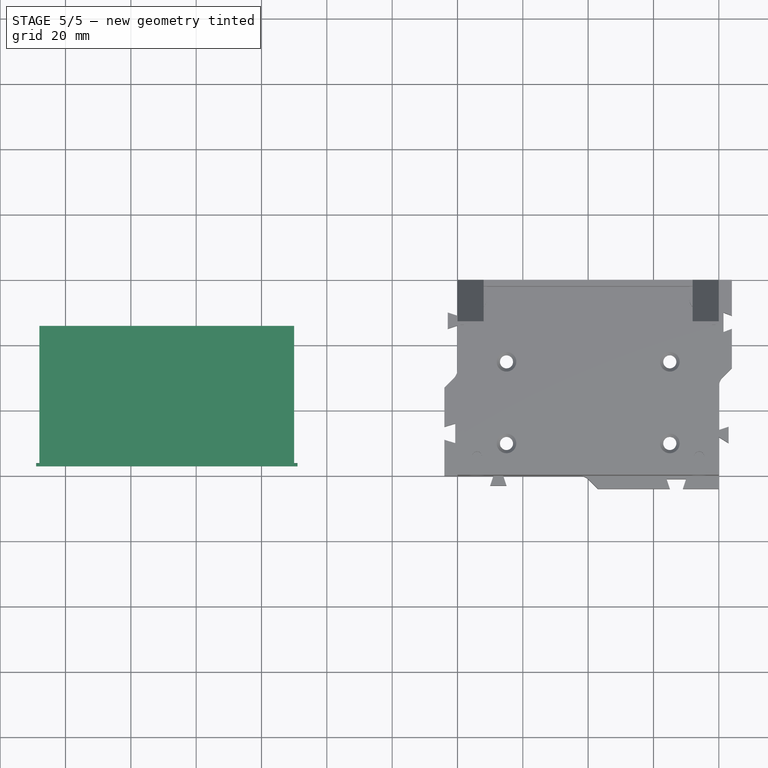
[diagram: stage 5 of 5 — top view after this stage's code; geometry added in this stage tinted green]
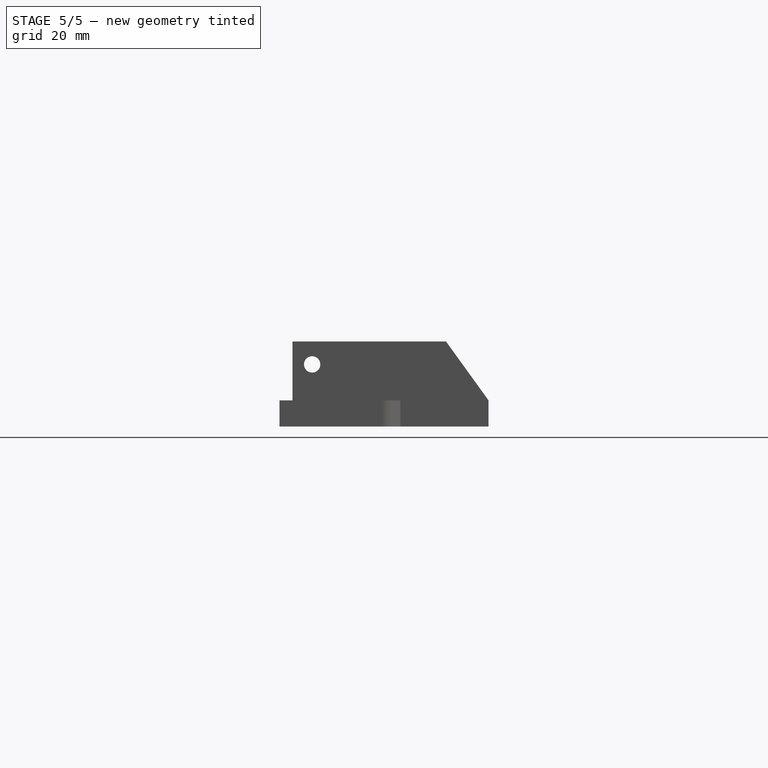
[diagram: stage 5 of 5 — right view after this stage's code; geometry added in this stage tinted green]
FEATURE [Part::Cut] Cut003  label="Caixa"
  Base = -> Fusion003
  Tool = -> Pad012
FEATURE [Sketcher::SketchObject] Sketch013
  sketch-geometry (4):
    g0: LineSegment StartX=-50 StartY=-14 StartZ=0 EndX=-128 EndY=-14 EndZ=0
    g1: LineSegment StartX=-128 StartY=-14 StartZ=0 EndX=-128 EndY=-57 EndZ=0
    g2: LineSegment StartX=-128 StartY=-57 StartZ=0 EndX=-50 EndY=-57 EndZ=0
    g3: LineSegment StartX=-50 StartY=-57 StartZ=0 EndX=-50 EndY=-14 EndZ=0
  constraints (12):
    c: Coincident(g0,g1)
    c: Coincident(g1,g2)
    c: Coincident(g2,g3)
    c: Coincident(g3,g0)
    c: Horizontal(g0)
    c: Horizontal(g2)
    c: Vertical(g1)
    c: Vertical(g3)
    c: DistanceY(g3) = 43
    c: DistanceX(g0) = -78
    c: DistanceY(g-1,g0) = -14
    c: DistanceX(g-1,g0) = -50
FEATURE [PartDesign::Pad] Pad013
  Length = 2
  Length2 = 100
  Sketch = -> Sketch013
  Type = 0
FEATURE [Sketcher::SketchObject] Sketch014
  Placement = pos=(-49,0,0) rot=(0.57735,-0.57735,-0.57735;2.0944rad)
  sketch-geometry (1):
    g0: Circle CenterX=56.5 CenterY=1 CenterZ=0 NormalX=0 NormalY=0 NormalZ=1 Radius=0.5
  constraints (3):
    c: DistanceX(g-1,g0) = 56.5
    c: DistanceY(g-1,g0) = 1
    c: Radius(g0) = 0.5
FEATURE [PartDesign::Pad] Pad014
  Length = 80
  Length2 = 100
  Placement = pos=(-49,0,0) rot=(0.57735,-0.57735,-0.57735;2.0944rad)
  Sketch = -> Sketch014
  Type = 0
FEATURE [Part::MultiFuse] Fusion004  label="Tampa"
  Shapes = -> [Pad014,Pad013]
FEATURE [Part::Cut] Cut004
  Base = -> Cut003
  Tool = -> Pad015
FEATURE [PartDesign::Chamfer] Chamfer
  Base = -> Cut004 [Edge145,Edge143,Edge139,Edge141]
  Size = 1
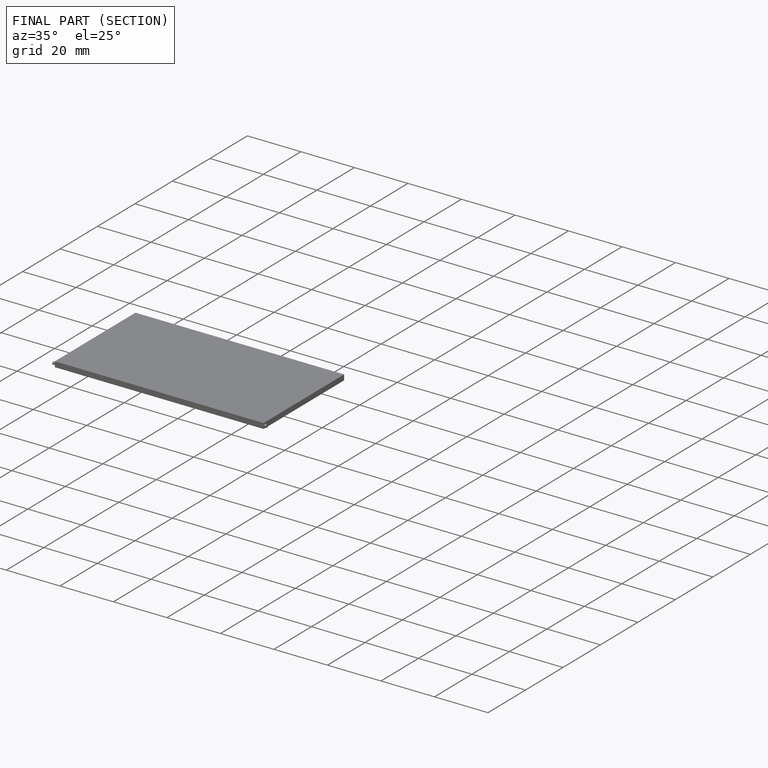
[diagram: finished part — half-section view (interior)]
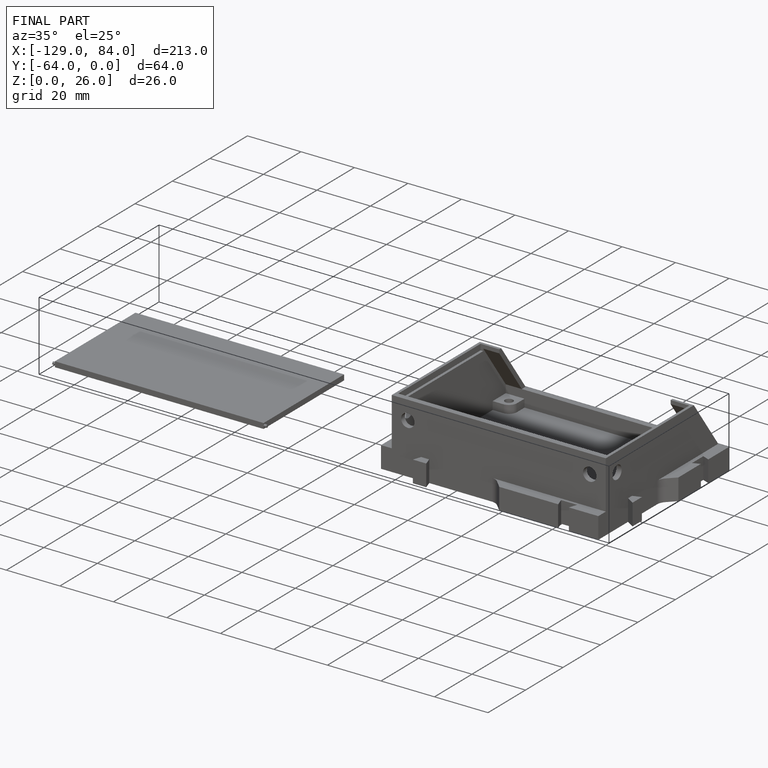
[diagram: finished part — iso view with bounding-box wireframe]
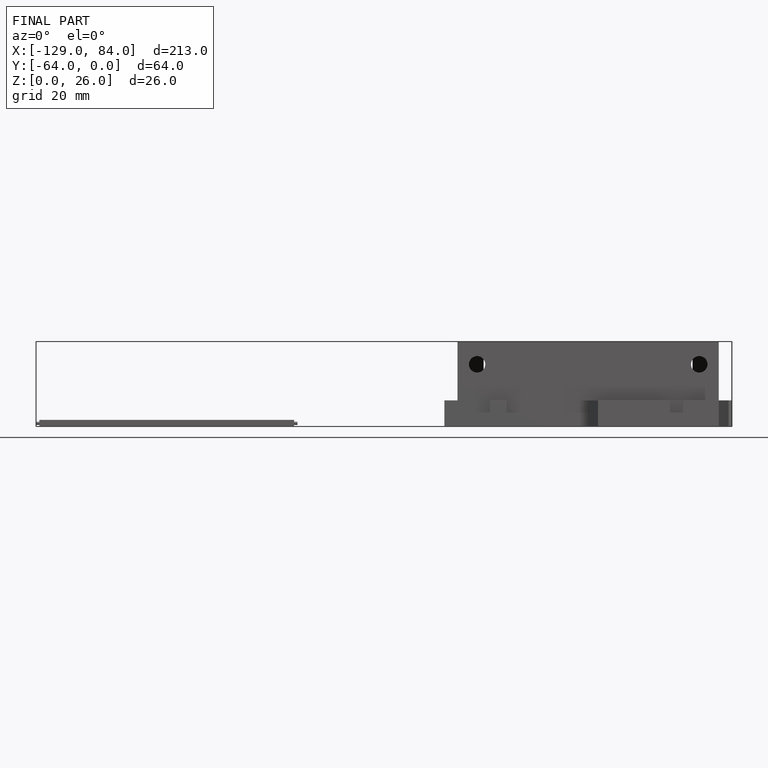
[diagram: finished part — front view with bounding-box wireframe]
